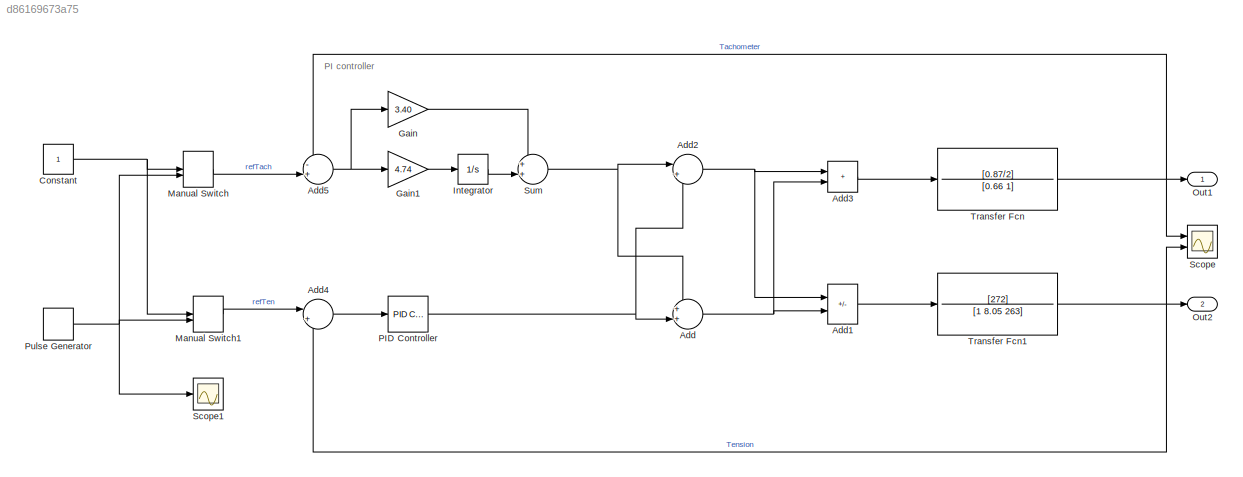
MODEL slx_d86169673a75
KIND model
CONFIG AbsTol = auto
CONFIG EnableMultiTasking = off
CONFIG FixedStep = auto
CONFIG MaxStep = auto
CONFIG MinStep = auto
CONFIG RelTol = 1e-3
CONFIG SampleTimeConstraint = Unconstrained
CONFIG Solver = VariableStepAuto
CONFIG SolverName = VariableStepAuto
CONFIG StartTime = 0.0
CONFIG StopTime = 200
BLOCK [Sum] Add
  Inputs = ++|
  Ports = [2, 1]
BLOCK [Sum] Add1
  IconShape = rectangular
  Inputs = -+
  Ports = [2, 1]
BLOCK [Sum] Add2
  Inputs = |+-
  Ports = [2, 1]
BLOCK [Sum] Add3
  IconShape = rectangular
  Inputs = 2
  Ports = [2, 1]
BLOCK [Sum] Add4
  Inputs = |+-
  Ports = [2, 1]
BLOCK [Sum] Add5
  Inputs = -+|
  Ports = [2, 1]
BLOCK [Constant] Constant
BLOCK [Gain] Gain
  Gain = 3.40
BLOCK [Gain] Gain1
  Gain = 4.74
BLOCK [Integrator] Integrator
  Ports = [1, 1]
BLOCK [ManualSwitch] Manual Switch
  CurrentSetting = 0
BLOCK [ManualSwitch] Manual Switch1
BLOCK [Outport] Out1
  VectorParamsAs1DForOutWhenUnconnected = off
BLOCK [Outport] Out2
  Port = 2
  VectorParamsAs1DForOutWhenUnconnected = off
BLOCK [Reference] PID Controller  REF=simulink/Continuous/PID Controller
  Ports = [1, 1]
  SourceBlock = simulink/Continuous/PID Controller
  SourceProductBaseCode = SL
  SourceType = PID 1dof
BLOCK [DiscretePulseGenerator] Pulse Generator
  Period = 50
  Ports = [0, 1]
  PulseType = Time based
  PulseWidth = 50
BLOCK [Scope] Scope
  Floating = off
  NumInputPorts = 2
  Ports = [2]
  ScopeSpecificationString = Simulink.scopes.TimeScopeBlockCfg('CurrentConfiguration', extmgr.ConfigurationSet(extmgr.Configuration('Core','General UI',true,'FigureColor',[1 1 1]),extmgr.Configuration('Core','Source UI',true),extmgr.Configuration('Sources','WiredSimulink',true,'DataLogging',true,'DataLoggingSaveFormat','StructureWithTime'),extmgr.Configuration('Visuals','Time Domain',true,'SerializedDisplays',{struct('MinYLim...<+1880ch>
BLOCK [Scope] Scope1
  Floating = off
  NumInputPorts = 1
  Ports = [1]
  ScopeSpecificationString = Simulink.scopes.TimeScopeBlockCfg('CurrentConfiguration', extmgr.ConfigurationSet(extmgr.Configuration('Core','General UI',true),extmgr.Configuration('Core','Source UI',true),extmgr.Configuration('Sources','WiredSimulink',true,'DataLoggingVariableName','ScopeData1'),extmgr.Configuration('Visuals','Time Domain',true,'SerializedDisplays',{struct('MinYLimReal','-0.125','MaxYLimReal','1.125','YLabelRe...<+1397ch>
BLOCK [Sum] Sum
  Inputs = ++|
  Ports = [2, 1]
BLOCK [TransferFcn] Transfer Fcn
  Denominator = [0.66 1]
  Numerator = [0.87/2]
BLOCK [TransferFcn] Transfer Fcn1
  Denominator = [1 8.05 263]
  Numerator = [272]
ANNOTATION (root): PI controller
LINE Add1:1 -> Transfer Fcn1:1
NET Add2:1 -> Add1:1, Add3:1
LINE Add3:1 -> Transfer Fcn:1
LINE Add4:1 -> PID Controller:1
NET Add5:1 -> Gain1:1, Gain:1
NET Add:1 -> Add1:2, Add3:2
NET Constant:1 -> Manual Switch1:1, Manual Switch:1
LINE Gain1:1 -> Integrator:1
LINE Gain:1 -> Sum:1
LINE Integrator:1 -> Sum:2
LINE Manual Switch1:1 -> Add4:1
LINE Manual Switch:1 -> Add5:2
NET PID Controller:1 -> Add2:2, Add:2
NET Pulse Generator:1 -> Manual Switch1:2, Manual Switch:2, Scope1:1
NET Sum:1 -> Add2:1, Add:1
NET Transfer Fcn1:1 -> Add4:2, Out2:1, Scope:2
NET Transfer Fcn:1 -> Add5:1, Out1:1, Scope:1
note: NET lines group one-source signal fan-out (src -> all destinations, sorted); 1:1 wires keep LINE
